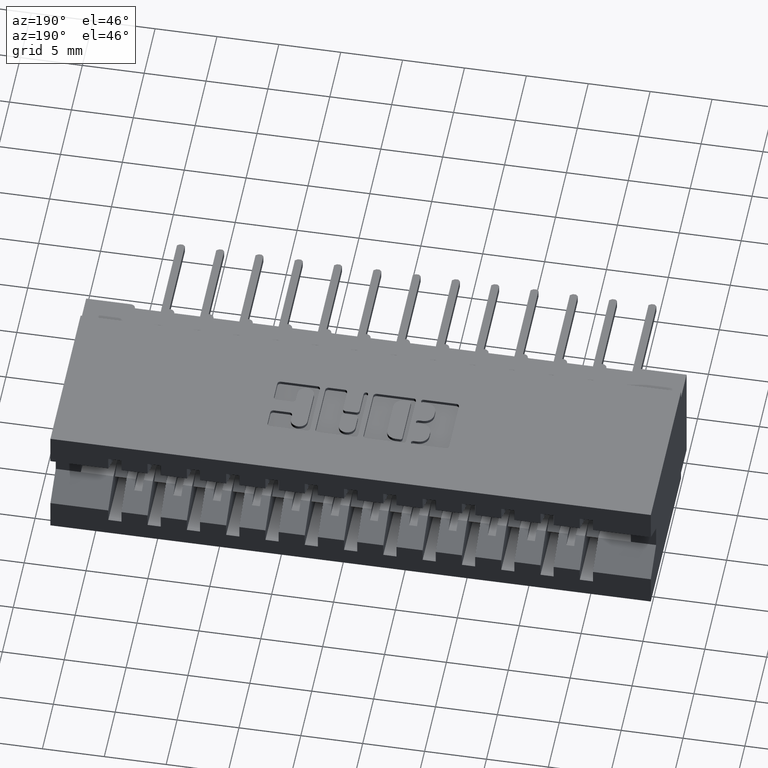
[diagram: clean part render]
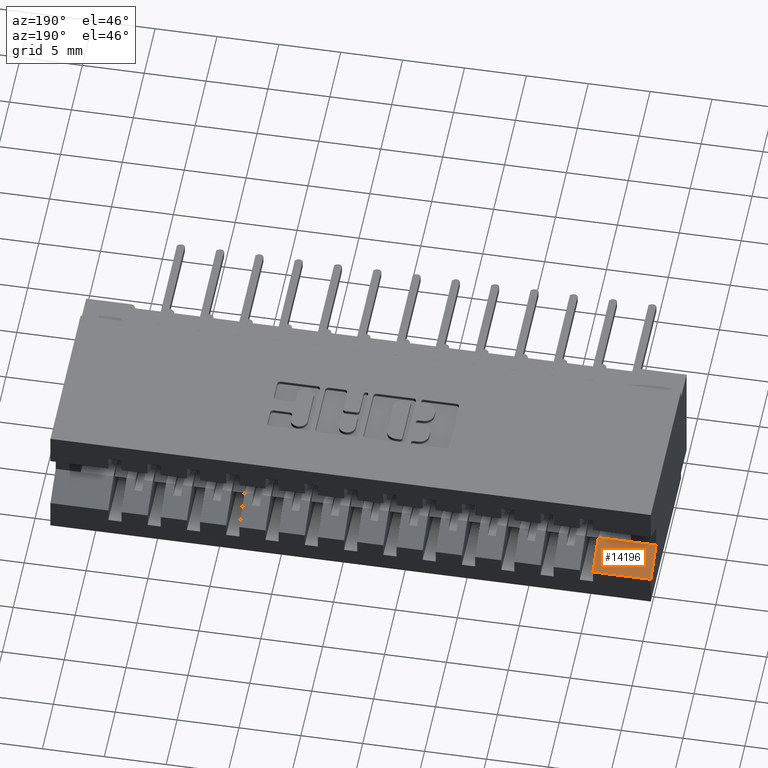
[diagram: same view with one face highlighted and labeled with its STEP entity id]
A machine part, auxiliary view. The second image highlights one B-rep face of the part: STEP entity #14196.
In plain terms, the highlighted planar face has unit normal (0, 0.5194, 0.8545).
Its self-contained STEP definition (entity closure, byte-faithful):
#905 = PLANE ( 'NONE',  #11897 ) ;
#1294 = CARTESIAN_POINT ( 'NONE',  ( 1.909999999999999920, 0.5499999999999999334, -0.2320000000000000395 ) ) ;
#1423 = CARTESIAN_POINT ( 'NONE',  ( 1.909999999999999920, 0.5499999999999999334, -0.2320000000000000395 ) ) ;
#2583 = CARTESIAN_POINT ( 'NONE',  ( 0.0000000000000000000, 0.6449999999999999067, -0.2897500000000000075 ) ) ;
#3148 = CARTESIAN_POINT ( 'NONE',  ( 1.909999999999999920, 0.6449999999999999067, -0.2897500000000000075 ) ) ;
#4242 = VECTOR ( 'NONE', #21652, 39.37007874015748854 ) ;
#4279 = VECTOR ( 'NONE', #13191, 39.37007874015748143 ) ;
#4718 = VECTOR ( 'NONE', #8691, 39.37007874015748143 ) ;
#4780 = EDGE_CURVE ( 'NONE', #16420, #18256, #17909, .T. ) ;
#5377 = CARTESIAN_POINT ( 'NONE',  ( 0.0000000000000000000, 0.5499999999999999334, -0.2320000000000000395 ) ) ;
#5521 = ORIENTED_EDGE ( 'NONE', *, *, #16190, .T. ) ;
#6057 = LINE ( 'NONE', #11615, #4279 ) ;
#6603 = LINE ( 'NONE', #5377, #4242 ) ;
#6656 = DIRECTION ( 'NONE',  ( 0.0000000000000000000, 0.5194474936862354397, 0.8545023705661023428 ) ) ;
#6923 = DIRECTION ( 'NONE',  ( -1.000000000000000000, 0.0000000000000000000, 0.0000000000000000000 ) ) ;
#8671 = ORIENTED_EDGE ( 'NONE', *, *, #18019, .T. ) ;
#8691 = DIRECTION ( 'NONE',  ( -1.000000000000000000, 0.0000000000000000000, 0.0000000000000000000 ) ) ;
#8770 = DIRECTION ( 'NONE',  ( -1.000000000000000000, 0.0000000000000000000, 0.0000000000000000000 ) ) ;
#9912 = DIRECTION ( 'NONE',  ( 0.0000000000000000000, -0.8545023705661022317, 0.5194474936862353287 ) ) ;
#10264 = VECTOR ( 'NONE', #6923, 39.37007874015748143 ) ;
#10384 = CARTESIAN_POINT ( 'NONE',  ( 1.909999999999999920, 0.5499999999999999334, -0.2320000000000000395 ) ) ;
#10664 = VERTEX_POINT ( 'NONE', #2583 ) ;
#11130 = CARTESIAN_POINT ( 'NONE',  ( 0.1839999999999996638, 0.5499999999999999334, -0.2320000000000000118 ) ) ;
#11357 = VECTOR ( 'NONE', #8770, 39.37007874015748143 ) ;
#11615 = CARTESIAN_POINT ( 'NONE',  ( 0.1839999999999997193, 0.5499999999999997113, -0.2319999999999999563 ) ) ;
#11897 = AXIS2_PLACEMENT_3D ( 'NONE', #10384, #6656, #9912 ) ;
#12117 = VERTEX_POINT ( 'NONE', #14912 ) ;
#12247 = LINE ( 'NONE', #1294, #10264 ) ;
#12817 = CARTESIAN_POINT ( 'NONE',  ( 0.07999999999999969635, 0.5499999999999999334, -0.2320000000000000395 ) ) ;
#12916 = VERTEX_POINT ( 'NONE', #11130 ) ;
#13191 = DIRECTION ( 'NONE',  ( -1.238924702507070723E-16, 0.8545023705661022317, -0.5194474936862353287 ) ) ;
#14196 = ADVANCED_FACE ( 'NONE', ( #17377 ), #905, .T. ) ;
#14733 = ORIENTED_EDGE ( 'NONE', *, *, #18421, .F. ) ;
#14912 = CARTESIAN_POINT ( 'NONE',  ( 0.1839999999999996638, 0.6449999999999999067, -0.2897500000000000075 ) ) ;
#16190 = EDGE_CURVE ( 'NONE', #12916, #12117, #6057, .T. ) ;
#16420 = VERTEX_POINT ( 'NONE', #12817 ) ;
#17377 = FACE_OUTER_BOUND ( 'NONE', #22179, .T. ) ;
#17909 = LINE ( 'NONE', #1423, #11357 ) ;
#18019 = EDGE_CURVE ( 'NONE', #12117, #10664, #19636, .T. ) ;
#18256 = VERTEX_POINT ( 'NONE', #18660 ) ;
#18421 = EDGE_CURVE ( 'NONE', #18256, #10664, #6603, .T. ) ;
#18660 = CARTESIAN_POINT ( 'NONE',  ( 0.0000000000000000000, 0.5499999999999999334, -0.2320000000000000395 ) ) ;
#18921 = EDGE_CURVE ( 'NONE', #12916, #16420, #12247, .T. ) ;
#19636 = LINE ( 'NONE', #3148, #4718 ) ;
#19675 = ORIENTED_EDGE ( 'NONE', *, *, #18921, .F. ) ;
#20102 = ORIENTED_EDGE ( 'NONE', *, *, #4780, .F. ) ;
#21652 = DIRECTION ( 'NONE',  ( 0.0000000000000000000, 0.8545023705661023428, -0.5194474936862353287 ) ) ;
#22179 = EDGE_LOOP ( 'NONE', ( #19675, #5521, #8671, #14733, #20102 ) ) ;